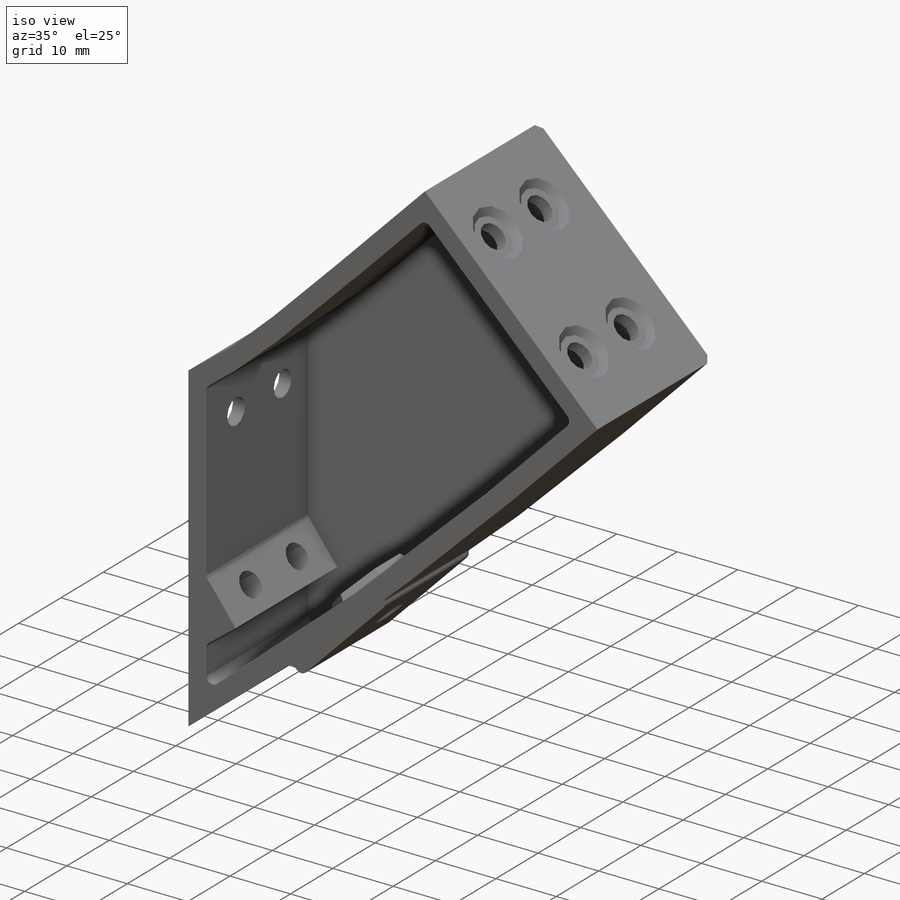
[diagram: iso view]
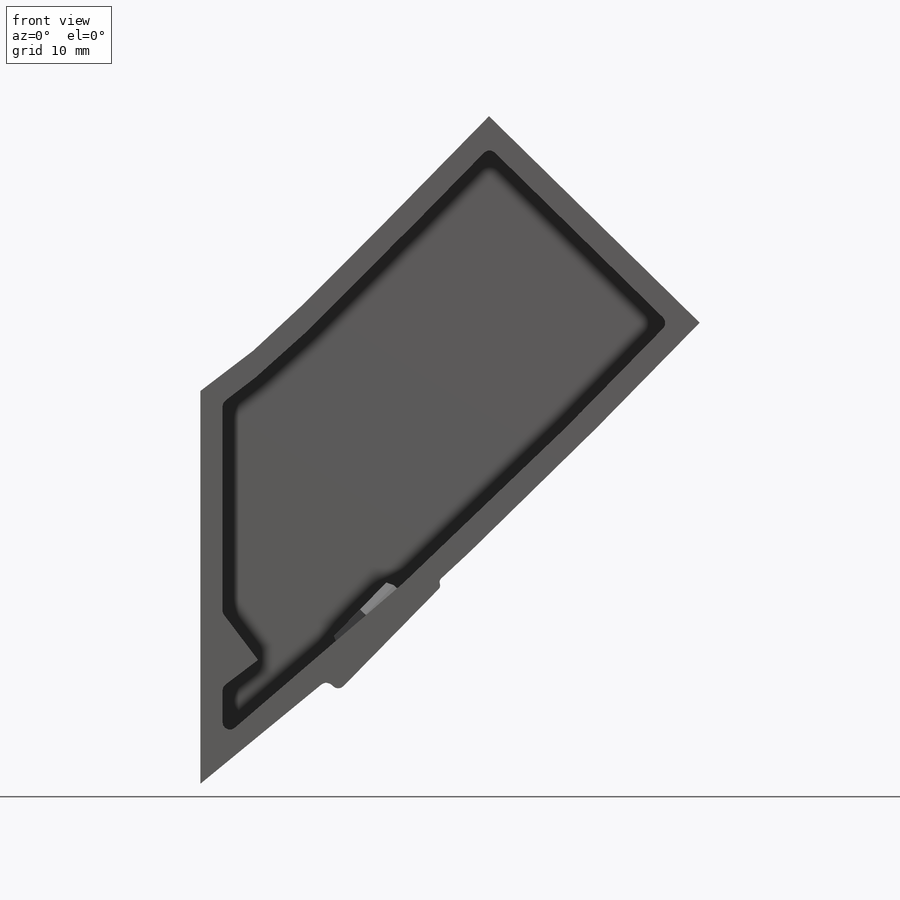
[diagram: front view]
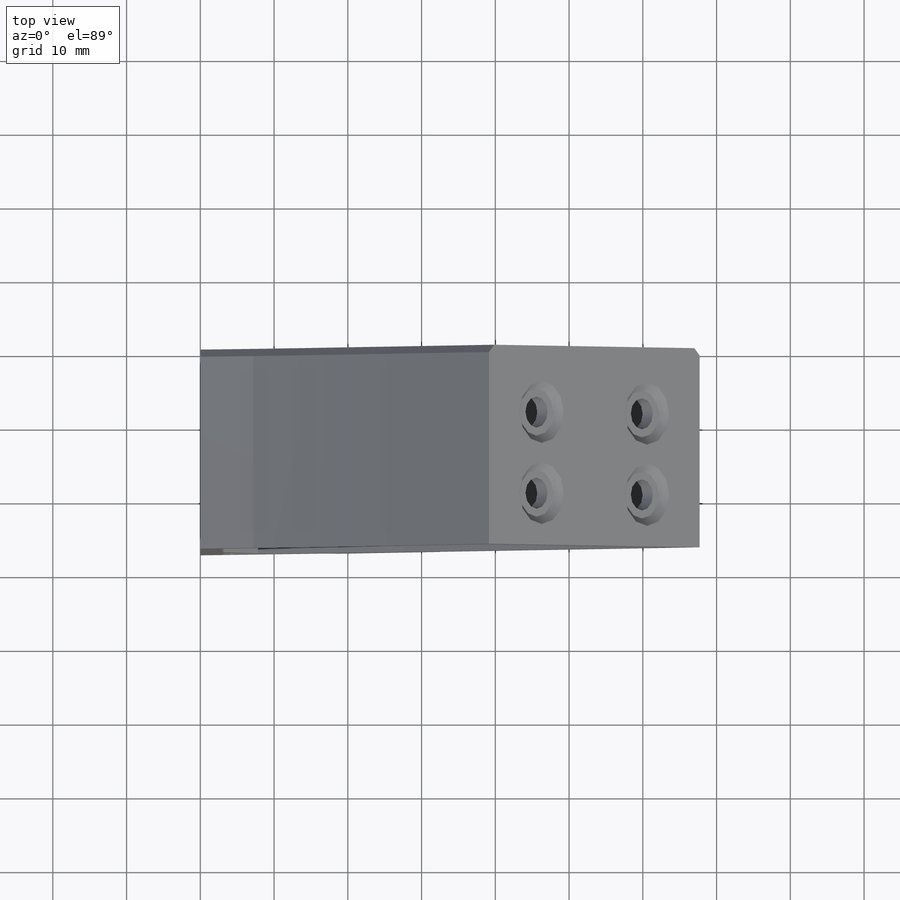
[diagram: top view]
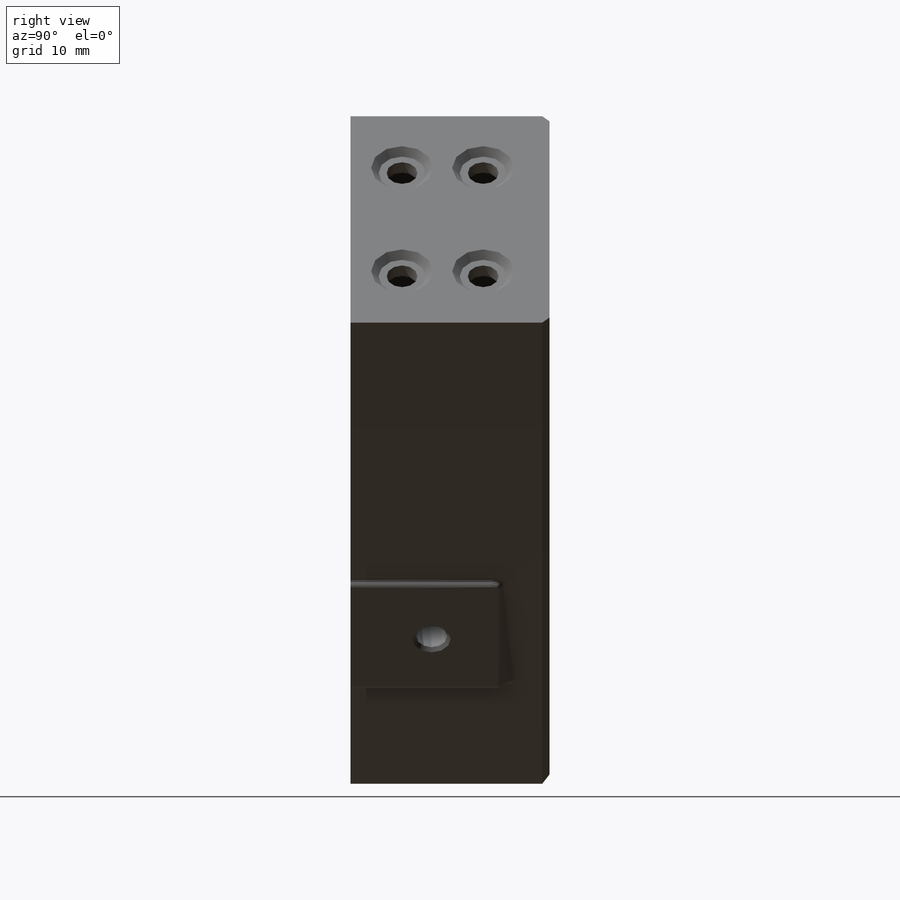
[diagram: right view]
SOLIDWORKS PART (.sldprt)
format: sldprt  version: not decoded by parser v0  size: 22,692,864 bytes
history: native  units: mm
features: sketch x76, cut_extrude x44, extrude x27, chamfer x11, fillet x10, plane x5, pattern_linear x4, material x1, sweep x1 (+19 scaffold rows collapsed; 8 parser-record rows omitted)
feature tree (206):
  scaffold x19  (default folders/planes/origin — collapsed)
  material  "Material <not specified>"
  sketch  "Sketch1"  dims[D1=~50.140246mm]
  extrude  "Boss-Extrude1"  Depth=3mm
  sketch  "Sketch2"  dims[D1=24.0mm D5=3.0mm D6=1.0mm D7=5.0mm]
  parser-record x8  (decoder bookkeeping rows leaked as tree rows — omitted from the tree; the rows remain in map.json)
  sketch  "Sketch3"
  cut_extrude  "Cut-Screw Holes To Base"  Depth=10mm
  sketch  "Sketch4"  dims[D1=2.1mm]
  cut_extrude  "Cut-Alignment Cone"  Depth=1mm
  sketch  "Sketch6"  dims[D1=8.0mm]
  extrude  "Boss-Screw Wedge"  [1 undecoded]
  sketch  "Sketch7"
  cut_extrude  "Cut-Wedge Holes"  [1 undecoded]
  pattern_linear  "LPattern4"  Count1=2 Count2=1 Spacing1=11mm Spacing2=10mm
  sketch  "Sketch53"  dims[D1=20.0mm]
  extrude  "Boss-Extrude23"  [1 undecoded]
  sketch  "Sketch54"
  cut_extrude  "Cut-Extrude16"  [1 undecoded]
  sketch  "Sketch55"
  chamfer  "Chamfer2"  Distance=1mm Angle=45deg
  extrude  "Extrude-Thin1"  Depth=3mm
  sketch  "Sketch56"  dims[D1=6.0mm]
  sketch  "Sketch49"  dims[D1=4.2mm D2=2.0mm]
  extrude  "Boss-Cone2"  Depth=1mm
  sketch  "Sketch28"  dims[D1=4.2mm]
  cut_extrude  "Cut-Screw Hole2"  [1 undecoded]
  sketch  "Sketch410"  dims[D1=4.2mm D2=2.0mm]
  extrude  "Boss-Cone3"  Depth=1mm
  sketch  "Sketch29"  dims[D1=4.2mm]
  cut_extrude  "Cut-Screw Hole3"  [1 undecoded]
  sketch  "Sketch210"  dims[D1=4.2mm]
  cut_extrude  "Cut-Screw Hole4"  [1 undecoded]
  sketch  "Sketch38"  dims[D1=2.1mm]
  cut_extrude  "Cut-Cone Indentation"  Depth=1mm
  sketch  "Sketch211"  dims[D1=4.2mm]
  cut_extrude  "Cut-Screw Hole5"  [1 undecoded]
  sketch  "Sketch39"  dims[D1=2.1mm]
  cut_extrude  "Cut-Cone Indentation1"  Depth=1mm
  sketch  "Sketch212"  dims[D1=7.1mm]
  cut_extrude  "Cut-Extrude17"  Depth=1mm
  sketch  "Sketch310"  dims[D1=2.0mm]
  extrude  "Boss-Extrude2"  Depth=1mm
  sketch  "Sketch213"  dims[D1=7.1mm]
  cut_extrude  "Cut-Extrude19"  Depth=1mm
  sketch  "Sketch311"  dims[D1=2.0mm]
  extrude  "Boss-Extrude25"  Depth=1mm
  pattern_linear  "LPattern2"  Count1=2 Count2=1 Spacing1=11mm Spacing2=10mm
  pattern_linear  "LPattern3"  Count1=2 Count2=1 Spacing1=11mm Spacing2=10mm
  sketch  "Sketch411"  dims[D1=3.0mm D2=10.0mm D3=7.0mm]
  cut_extrude  "Cut-Zip Tie Slot"  [1 undecoded]
  sketch  "Sketch412"  dims[D2=~24.715516mm D1=3.0mm]
  cut_extrude  "Cut-Wire Opening"  [1 undecoded]
  sketch  "Sketch413"  dims[D1=~40.682051mm]
  cut_extrude  "Cut-Wire Opening Angled"  [1 undecoded]
  sketch  "Sketch414"  dims[D1=~4.899786mm]
  cut_extrude  "Cut-Zip Tie Slot Angled"  [1 undecoded]
  sketch  "Sketch-End Hole Centers"  dims[D1=6.0mm]
  sketch  "Sketch35"  dims[D1=2.0mm]
  cut_extrude  "Cut-End Holes"  [1 undecoded]
  sketch  "Sketch41"  dims[D1=4.2mm D2=2.0mm]
  extrude  "Boss-Cone"  Depth=1mm
  sketch  "Sketch21"  dims[D1=4.2mm]
  cut_extrude  "Cut-Screw Hole"  [1 undecoded]
  sketch  "Sketch42"  dims[D1=4.2mm D2=2.0mm]
  extrude  "Boss-Cone1"  Depth=1mm
  sketch  "Sketch22"  dims[D1=4.2mm]
  cut_extrude  "Cut-Screw Hole1"  [1 undecoded]
  sketch  "Sketch26"  dims[D1=7.1mm]
  cut_extrude  "Cut-Extrude1"  Depth=1mm
  sketch  "Sketch36"  dims[D1=2.0mm]
  extrude  "Boss-Extrude21"  Depth=1mm
  sketch  "Sketch27"  dims[D1=7.1mm]
  cut_extrude  "Cut-Extrude13"  Depth=1mm
  sketch  "Sketch37"  dims[D1=2.0mm]
  extrude  "Boss-Extrude22"  Depth=1mm
  pattern_linear  "LPattern1"  Count1=2 Count2=1 Spacing1=11mm Spacing2=10mm
  sketch  "Sketch44"  dims[c1.D3=3.6mm c1.D4=3.6mm c2.D3=7.6mm c2.D1=46.25mm c2.D2=8.0mm c2.D4=2.0mm]
  extrude  "Boss-Printrboard Mount"  Depth=2mm
  sketch  "Sketch47"  dims[D1=2.8mm]
  cut_extrude  "Cut-Printrboard Screw"  Depth=8mm
  sketch  "Sketch45"  dims[D1=12.0mm]
  extrude  "Boss-Power Mount"  Depth=14mm
  plane  "Plane1"
  sketch  "Sketch46"  dims[D1=8.0mm D2=2.0mm]
  cut_extrude  "Cut-Power Hole"  [1 undecoded]
  sketch  "Sketch48"  dims[D1=~6.032534mm]
  cut_extrude  "Cut-Power Nut Hole"  Depth=1mm
  sketch  "Sketch50"  dims[D1=3.0mm]
  cut_extrude  "Cut-Extrude15"  [1 undecoded]
  chamfer  "Chamfer1"  Distance=1mm Angle=45deg
  sketch  "Sketch415"  dims[c1.D3=10.0mm c1.D1=~9.526279mm c1.D2=45.0mm c1.D4=10.0mm c2.D2=63.75mm c2.D4=40.0mm c3.D2=63.75mm]
  extrude  "Boss-Printrboard Screw Boss"  Depth=2mm
  sketch  "Sketch416"  dims[D1=3.4mm]
  cut_extrude  "Cut-Printrboard Screw Hole"  [1 undecoded]
  sketch  "Sketch417"  dims[D1=~6.867802mm]
  extrude  "Boss-Screw Boss Fillet"  [1 undecoded]
  plane  "Plane3"  Offset=10mm
  sketch  "Sketch429"  dims[D1=6.0mm D2=~6.627187mm]
  cut_extrude  "Cut-Extrude25"  Depth=2.6mm
  sketch  "Sketch430"  dims[D1=0.0mm]
  cut_extrude  "Cut-Extrude26"  Depth=2.6mm
  fillet  "Fillet1"  Radius=1mm
  chamfer  "Chamfer6"  Distance=1mm Angle=45deg
  plane  "Plane4"
  sketch  "Sketch431"  dims[c1.D1=~2.153606mm c2.D1=45.0deg c3.D1=6.0mm c4.D1=135.0deg]
  cut_extrude  "Cut-Extrude27"  Depth=1.7mm
  sketch  "Sketch436"  dims[c1.D2=3.4mm c1.D1=127.5mm c2.D2=~66.234005mm c2.D1=68.0mm c3.D2=127.5mm]
  sketch  "Sketch437"  dims[D1=10.0mm]
  extrude  "Boss-Extrude29"  [1 undecoded]
  sketch  "Sketch439"  dims[D1=~6.168704mm]
  extrude  "Boss-Extrude30"  [1 undecoded]
  cut_extrude  "Cut-Extrude31"  [1 undecoded]
  sketch  "Sketch440"  dims[D1=10.0mm]
  cut_extrude  "Cut-Extrude32"  [1 undecoded]
  cut_extrude  "Cut-Extrude35"  [1 undecoded]
  sketch  "Sketch440<2>"
  sketch  "Sketch442"  dims[D1=3.0mm]
  cut_extrude  "Cut-Extrude37"  [1 undecoded]
  fillet  "Fillet3"  Radius=3mm
  chamfer  "Chamfer8"  Distance=1mm Angle=45deg
  sketch  "Sketch418"  dims[c1.D1=24.0mm c1.D2=17.5mm c1.D3=~9.304582mm c2.D3=35.0deg]
  sketch  "Sketch420"  dims[c1.D1=~15.185399mm c1.D2=~18.726791mm c2.D1=7.5mm c2.D2=21.0mm c2.D3=~12.903488mm c3.D1=8.0mm c3.D3=4.0mm]
  extrude  "Boss-Extrude26"  Depth=4.3mm
  sketch  "Sketch421"  dims[D1=15.0mm D2=7.5mm]
  extrude  "Boss-Extrude27"  Depth=12mm
  cut_extrude  "Cut-Extrude22"  Depth=5mm
  chamfer  "Chamfer3"  Distance=12mm Angle=45deg
  sketch  "Sketch422"  dims[c1.D1=~7.49312mm c1.D2=~6.774573mm c2.D1=~9.290505mm c2.D2=~7.085287mm c3.D1=8.0mm c3.D2=20.0mm c3.D3=7.5mm c3.D4=7.0mm]
  extrude  "Boss-Extrude28"  Depth=5mm
  sketch  "Sketch423"  dims[c1.D1=~5.576722mm c1.D2=~3.184868mm c2.D1=6.0mm c2.D2=2.5mm]
  cut_extrude  "Cut-Extrude23"  [1 undecoded]
  chamfer  "Chamfer4"  Distance=5mm Angle=45deg
  plane  "Plane2"
  sketch  "Sketch424"  dims[c1.D1=~2.988034mm c1.D2=4.0mm c2.D1=4.0mm c2.D2=~4.131171mm]
  sketch  "3DSketch3"  dims[c1.D1=~5.933775mm c2.D1=~7.268543mm c3.D1=~6.229694mm]
  sweep  "Sweep1"
  fillet  "Fillet7"  Radius=1mm
  plane  "Plane5"
  sketch  "Sketch443"  dims[c1.D1=46.0mm c1.D2=~22.155825mm c1.D3=~10.095324mm c2.D2=7.0mm c2.D3=10.0mm c2.D4=31.5mm c3.D2=3.0mm c3.D3=5.0mm]
  extrude  "Boss-Extrude34"  Depth=25.5mm
  sketch  "Sketch444"
  extrude  "Boss-Extrude35"  [1 undecoded]
  sketch  "Sketch446"  dims[c1.D1=~15.024809mm c1.D2=~24.13659mm c2.D1=21.5mm c2.D2=15.5mm]
  cut_extrude  "Cut-Extrude38"  Depth=6mm
  chamfer  "Chamfer9"  Distance=2mm Angle=60deg
  chamfer  "Chamfer10"  Distance=2.25mm Angle=60deg
  sketch  "Sketch447"  dims[D1=0.0mm]
  sketch  "Sketch448"  dims[c1.D1=~10.865463mm c1.D2=~17.325317mm c2.D1=13.25mm c2.D2=20.25mm]
  cut_extrude  "Cut-Extrude39"  [1 undecoded]
  extrude  "Boss-Extrude36"  [1 undecoded]
  fillet  "Fillet8"  Radius=1mm
  chamfer  "Chamfer11"  Distance=3mm
  sketch  "Sketch434"  dims[c1.D1=~1.884749mm c1.D2=~4.521159mm c2.D1=3.0mm c2.D2=~4.521159mm c3.D2=90.0deg c3.D3=5.0mm c4.D2=5.0mm c4.D3=10.0mm]
  cut_extrude  "Cut-Extrude28"  [1 undecoded]
  sketch  "Sketch427"  dims[D1=11.0mm]
  cut_extrude  "Wire Cutout Straight"  [1 undecoded]
  sketch  "Sketch428"  dims[D1=11.0mm D2=6.0mm]
  cut_extrude  "Wire Cutout Angled"  [1 undecoded]
  sketch  "Sketch435"  dims[c1.D1=~5.250177mm c1.D2=~3.875111mm c2.D1=3.0mm c2.D2=5.0mm c2.D3=10.0mm]
  cut_extrude  "Cut-Extrude29"  Depth=10mm
  chamfer  "Chamfer7"  Distance=1mm Angle=45deg
  sketch  "Sketch441"  dims[c1.D1=~6.684859mm c1.D2=~5.628572mm c2.D1=2.5mm c2.D2=5.0mm c2.D3=15.0mm c2.D4=5.0mm]
  cut_extrude  "Cut-Extrude36"  [1 undecoded]
  fillet  "Fillet2"  Radius=1mm
  fillet  "Fillet4"  Radius=1mm
  fillet  "Fillet5"  Radius=1mm
  fillet  "Fillet6"  Radius=1mm
  sketch  "Sketch449"  dims[D1=60.0mm D2=20.0mm]
  extrude  "Boss-Extrude38"  Depth=20mm
  sketch  "Sketch450"  dims[D1=~3.178501mm]
  extrude  "Boss-Extrude39"  [1 undecoded]
  sketch  "Sketch451"  dims[c1.D1=~7.034442mm c1.D2=4.2mm c2.D1=16.0mm]
  cut_extrude  "Cut-Extrude40"  [1 undecoded]
  sketch  "Sketch452"  dims[D1=7.1mm]
  cut_extrude  "Cut-Extrude41"  Depth=2mm
  sketch  "Sketch453"  dims[D1=2.0mm]
  extrude  "Boss-Extrude40"  Depth=1mm
  fillet  "Fillet9"  Radius=1mm
  fillet  "Fillet10"  Radius=0.65mm
  chamfer  "Chamfer12"  Distance=0.5mm Angle=45deg
decode coverage: 131 of 173 modeling features carry decoded parameters
note: ~ marks probable driven/reference dimensions
note: 35 parameter values undecoded
summary: no parameter record found for 35 features
note: suppression state not decoded; provenance and decode notes live in map.json
